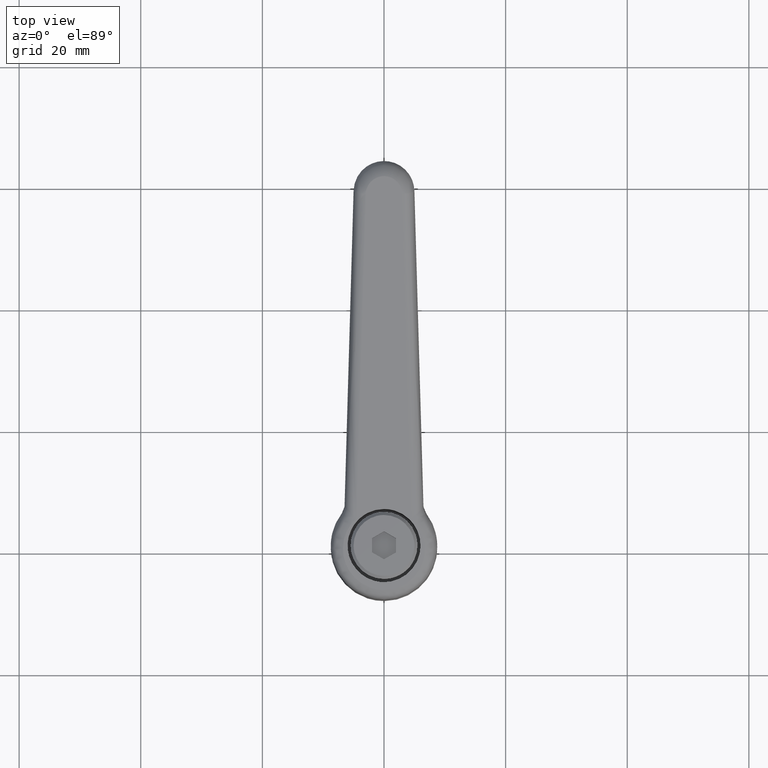
[diagram: clean part render]
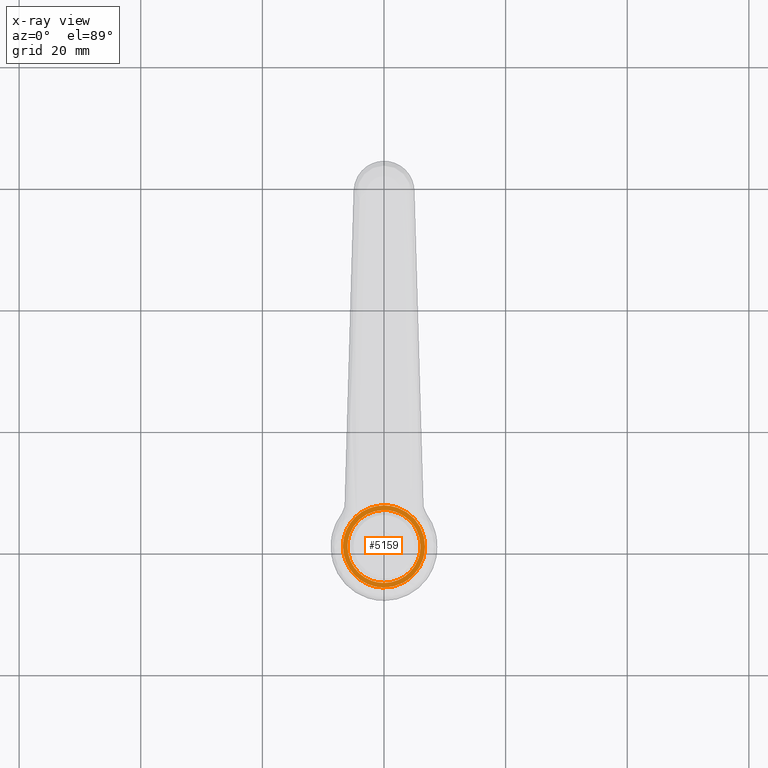
[diagram: x-ray — body ghosted, one internal face saturated and labeled with its STEP entity id]
A machine part, top view, then the same camera in x-ray: the body is ghosted and one INTERNAL B-rep face — a face not visible from any outside direction — is saturated and labeled: STEP entity #5159.
In plain terms, the highlighted face is a freeform B-spline surface patch.
Its self-contained STEP definition (entity closure, byte-faithful):
#1585=CARTESIAN_POINT('',(-6.750000000000000,0.0,20.0));
#1586=VERTEX_POINT('',#1585);
#1587=CARTESIAN_POINT('',(-4.707665774555602,-4.837393883639553,20.0));
#1588=VERTEX_POINT('',#1587);
#1589=CARTESIAN_POINT('',(-6.750000000000000,0.0,20.0));
#1590=CARTESIAN_POINT('',(-6.750047852459818,-0.421344382200241,19.999999999999979));
#1591=CARTESIAN_POINT('',(-6.678750180061511,-1.179743160758535,20.000000000000082));
#1592=CARTESIAN_POINT('',(-6.408624211550302,-2.186355254477525,19.999999999999890));
#1593=CARTESIAN_POINT('',(-6.014554966165452,-3.119779151055231,20.000000000000050));
#1594=CARTESIAN_POINT('',(-5.469862901057756,-4.009576945231448,20.000000000000039));
#1595=CARTESIAN_POINT('',(-4.969372797715725,-4.582732008596127,19.999999999999972));
#1596=CARTESIAN_POINT('',(-4.707665774555602,-4.837393883639553,20.0));
#1597=B_SPLINE_CURVE_WITH_KNOTS('',3,(#1589,#1590,#1591,#1592,#1593,#1594,#1595,#1596),.UNSPECIFIED.,.F.,.U.,(4,1,1,1,1,4),(0.000000021332869,1.264032321652425,2.275263053558142,3.117943944847564,4.297715579759432,5.393206977055107),.UNSPECIFIED.);
#1598=EDGE_CURVE('',#1586,#1588,#1597,.T.);
#1663=CARTESIAN_POINT('',(4.560234118807609,-4.976622161635863,20.000000000000959));
#1664=VERTEX_POINT('',#1663);
#1670=CARTESIAN_POINT('',(6.750000000000000,0.0,20.0));
#1671=VERTEX_POINT('',#1670);
#1672=CARTESIAN_POINT('',(4.560234118807609,-4.976622161635863,20.000000000000959));
#1673=CARTESIAN_POINT('',(4.925599445744350,-4.641939367150545,20.000000000000881));
#1674=CARTESIAN_POINT('',(5.446890379440823,-4.046081094355267,20.000000000000789));
#1675=CARTESIAN_POINT('',(6.096963784251284,-2.971509090422000,20.000000000000529));
#1676=CARTESIAN_POINT('',(6.602284788865497,-1.690360373136041,20.000000000000529));
#1677=CARTESIAN_POINT('',(6.750218731604470,-0.612079373668081,19.999999999999950));
#1678=CARTESIAN_POINT('',(6.750000000000000,0.0,20.0));
#1679=B_SPLINE_CURVE_WITH_KNOTS('',3,(#1672,#1673,#1674,#1675,#1676,#1677,#1678),.UNSPECIFIED.,.F.,.U.,(4,1,1,1,4),(0.000000021068987,1.486439119148687,2.360823021710730,3.759807988980699,5.596001072094870),.UNSPECIFIED.);
#1680=EDGE_CURVE('',#1664,#1671,#1679,.T.);
#1682=CARTESIAN_POINT('',(-0.000000998770336,6.749999999999925,20.0));
#1683=VERTEX_POINT('',#1682);
#1684=CARTESIAN_POINT('',(6.750000000000000,0.0,20.0));
#1685=CARTESIAN_POINT('',(6.750138798138079,0.552245415017492,19.999999999999989));
#1686=CARTESIAN_POINT('',(6.617104526615731,1.629034899699594,20.000000000000028));
#1687=CARTESIAN_POINT('',(6.036317173709437,3.162953865945357,20.000000000000039));
#1688=CARTESIAN_POINT('',(5.107715216543037,4.516453490831710,19.999999999999758));
#1689=CARTESIAN_POINT('',(3.919750659285771,5.566868829422893,20.000000000000309));
#1690=CARTESIAN_POINT('',(2.723917989578697,6.215360291891154,19.999999999999730));
#1691=CARTESIAN_POINT('',(1.435739623917982,6.640939025971506,20.000000000000501));
#1692=CARTESIAN_POINT('',(0.552240922458100,6.750136130865924,19.999999999999400));
#1693=CARTESIAN_POINT('',(-0.000000998770336,6.749999999999925,20.0));
#1694=B_SPLINE_CURVE_WITH_KNOTS('',3,(#1684,#1685,#1686,#1687,#1688,#1689,#1690,#1691,#1692,#1693),.UNSPECIFIED.,.F.,.U.,(4,1,1,1,1,1,1,4),(0.000000063344105,1.656709023213059,3.230585617361703,4.887303374934568,6.543998433416576,7.952207855107704,8.946247108303380,10.602942297336080),.UNSPECIFIED.);
#1695=EDGE_CURVE('',#1671,#1683,#1694,.T.);
#1697=CARTESIAN_POINT('',(-0.000000998770336,6.749999999999925,20.0));
#1698=CARTESIAN_POINT('',(-0.524631747445214,6.750110307263759,20.000000000000011));
#1699=CARTESIAN_POINT('',(-1.325311384082799,6.656164600320455,19.999999999999961));
#1700=CARTESIAN_POINT('',(-2.357723671330400,6.342917325021261,20.000000000000028));
#1701=CARTESIAN_POINT('',(-3.369427482873381,5.894627709943009,19.999999999999940));
#1702=CARTESIAN_POINT('',(-4.378754531556544,5.202125329216883,20.000000000000121));
#1703=CARTESIAN_POINT('',(-5.276839458970125,4.258664903834936,19.999999999999769));
#1704=CARTESIAN_POINT('',(-5.960187740921620,3.249479722978194,20.000000000000359));
#1705=CARTESIAN_POINT('',(-6.570527255918871,1.849817054373054,19.999999999999591));
#1706=CARTESIAN_POINT('',(-6.750311248677847,0.690323562978389,20.000000000000220));
#1707=CARTESIAN_POINT('',(-6.750000000000000,0.0,20.0));
#1708=B_SPLINE_CURVE_WITH_KNOTS('',3,(#1697,#1698,#1699,#1700,#1701,#1702,#1703,#1704,#1705,#1706,#1707),.UNSPECIFIED.,.F.,.U.,(4,1,1,1,1,1,1,1,4),(0.000000063689653,1.573864517690627,2.402228265621648,3.230585274430066,4.887302855312617,6.046968030854600,7.123840372897853,8.532062631622923,10.602941171482099),.UNSPECIFIED.);
#1709=EDGE_CURVE('',#1683,#1586,#1708,.T.);
#1728=CARTESIAN_POINT('',(0.000000998770202,-6.749999999999926,20.0));
#1729=VERTEX_POINT('',#1728);
#1730=CARTESIAN_POINT('',(-4.707665774555602,-4.837393883639553,20.0));
#1731=CARTESIAN_POINT('',(-4.435443302443039,-5.102343833887966,20.0));
#1732=CARTESIAN_POINT('',(-3.782983679431142,-5.637977608221552,20.000000000000028));
#1733=CARTESIAN_POINT('',(-2.586455961763407,-6.292488231079536,19.999999999999929));
#1734=CARTESIAN_POINT('',(-1.275293759613489,-6.674294105283130,20.000000000000099));
#1735=CARTESIAN_POINT('',(-0.379871221355099,-6.750009869499355,19.999999999999918));
#1736=CARTESIAN_POINT('',(0.000000998770202,-6.749999999999926,20.0));
#1737=B_SPLINE_CURVE_WITH_KNOTS('',3,(#1730,#1731,#1732,#1733,#1734,#1735,#1736),.UNSPECIFIED.,.F.,.U.,(4,1,1,1,4),(0.000000021400204,1.139629042592182,2.523478063841860,4.070106598584609,5.209735619777325),.UNSPECIFIED.);
#1738=EDGE_CURVE('',#1588,#1729,#1737,.T.);
#1740=CARTESIAN_POINT('',(0.000000998770202,-6.749999999999926,20.0));
#1741=CARTESIAN_POINT('',(0.521562535789347,-6.750113171596769,20.000000000000131));
#1742=CARTESIAN_POINT('',(1.460312270824603,-6.640634859805171,20.000000000000259));
#1743=CARTESIAN_POINT('',(2.626980457478653,-6.248132938084438,20.000000000000611));
#1744=CARTESIAN_POINT('',(3.646270507660660,-5.716166046534425,20.000000000000650));
#1745=CARTESIAN_POINT('',(4.233423351914636,-5.276176257696398,20.000000000000959));
#1746=CARTESIAN_POINT('',(4.560234118807609,-4.976622161635863,20.000000000000959));
#1747=B_SPLINE_CURVE_WITH_KNOTS('',3,(#1740,#1741,#1742,#1743,#1744,#1745,#1746),.UNSPECIFIED.,.F.,.U.,(4,1,1,1,4),(0.000000020607398,1.564669063013970,2.816403399846659,3.676971222119892,5.006940474732756),.UNSPECIFIED.);
#1748=EDGE_CURVE('',#1729,#1664,#1747,.T.);
#1802=CARTESIAN_POINT('',(0.000002161998299,-5.999999999999610,20.0));
#1803=VERTEX_POINT('',#1802);
#1804=CARTESIAN_POINT('',(4.299906206182567,-4.184592345931867,20.0));
#1805=VERTEX_POINT('',#1804);
#1806=CARTESIAN_POINT('',(0.000002161998299,-5.999999999999610,20.0));
#1807=CARTESIAN_POINT('',(0.349558937109292,-6.000023896291761,20.0));
#1808=CARTESIAN_POINT('',(1.123580664292646,-5.932193404178218,19.999999999999989));
#1809=CARTESIAN_POINT('',(2.329875082779548,-5.584265770356230,20.0));
#1810=CARTESIAN_POINT('',(3.429768763850591,-4.975290410037954,19.999999999999989));
#1811=CARTESIAN_POINT('',(4.056122549326317,-4.435108542765911,20.0));
#1812=CARTESIAN_POINT('',(4.299906206182567,-4.184592345931867,20.0));
#1813=B_SPLINE_CURVE_WITH_KNOTS('',3,(#1806,#1807,#1808,#1809,#1810,#1811,#1812),.UNSPECIFIED.,.F.,.U.,(4,1,1,1,4),(0.000000022588662,1.048678111560434,2.322086499918414,3.745281790245476,4.793959879218744),.UNSPECIFIED.);
#1814=EDGE_CURVE('',#1803,#1805,#1813,.T.);
#1816=CARTESIAN_POINT('',(-6.0,0.0,20.0));
#1817=VERTEX_POINT('',#1816);
#1818=CARTESIAN_POINT('',(-6.0,0.0,20.0));
#1819=CARTESIAN_POINT('',(-6.000085575478749,-0.441789565460154,20.000000000000011));
#1820=CARTESIAN_POINT('',(-5.923727845956352,-1.128968186143672,19.999999999999989));
#1821=CARTESIAN_POINT('',(-5.608731079762666,-2.215381303581054,20.000000000000021));
#1822=CARTESIAN_POINT('',(-5.164655734376877,-3.125224961256195,19.999999999999989));
#1823=CARTESIAN_POINT('',(-4.499134793451297,-4.011079732109551,20.000000000000011));
#1824=CARTESIAN_POINT('',(-3.714137504842598,-4.758518925927571,19.999999999999950));
#1825=CARTESIAN_POINT('',(-2.862677212287104,-5.305031113724250,20.000000000000181));
#1826=CARTESIAN_POINT('',(-1.913415139927537,-5.711937167364414,19.999999999999531));
#1827=CARTESIAN_POINT('',(-1.006284388414288,-5.945065717906108,20.000000000001201));
#1828=CARTESIAN_POINT('',(-0.319064216925106,-6.000020625553515,19.999999999998838));
#1829=CARTESIAN_POINT('',(0.000002161998299,-5.999999999999610,20.0));
#1830=B_SPLINE_CURVE_WITH_KNOTS('',3,(#1818,#1819,#1820,#1821,#1822,#1823,#1824,#1825,#1826,#1827,#1828,#1829),.UNSPECIFIED.,.F.,.U.,(4,1,1,1,1,1,1,1,1,4),(0.000000081565817,1.325351264936403,2.061682888816529,3.387057278031014,4.344266290489123,5.375102802319736,6.626838261267425,7.363159851675317,8.467634578141910,9.424838315799144),.UNSPECIFIED.);
#1831=EDGE_CURVE('',#1817,#1803,#1830,.T.);
#1833=CARTESIAN_POINT('',(-0.000002161998240,5.999999999999610,20.0));
#1834=VERTEX_POINT('',#1833);
#1835=CARTESIAN_POINT('',(-0.000002161998240,5.999999999999610,20.0));
#1836=CARTESIAN_POINT('',(-0.343605303294586,6.000014059929935,20.000000000000011));
#1837=CARTESIAN_POINT('',(-1.104462876515476,5.934505283865646,19.999999999999989));
#1838=CARTESIAN_POINT('',(-2.291617603842110,5.598186538426071,19.999999999999901));
#1839=CARTESIAN_POINT('',(-3.442858999708342,4.973740972322875,20.000000000000309));
#1840=CARTESIAN_POINT('',(-4.297785420202764,4.226958194676615,19.999999999999680));
#1841=CARTESIAN_POINT('',(-5.015425001586107,3.352591425963456,19.999999999999901));
#1842=CARTESIAN_POINT('',(-5.533474468527019,2.424878510248614,20.000000000000210));
#1843=CARTESIAN_POINT('',(-5.912840974068945,1.227149184552120,19.999999999999549));
#1844=CARTESIAN_POINT('',(-6.000082443865584,0.441790006197422,20.000000000000220));
#1845=CARTESIAN_POINT('',(-6.0,0.0,20.0));
#1846=B_SPLINE_CURVE_WITH_KNOTS('',3,(#1835,#1836,#1837,#1838,#1839,#1840,#1841,#1842,#1843,#1844,#1845),.UNSPECIFIED.,.F.,.U.,(4,1,1,1,1,1,1,1,4),(0.000000082313965,1.030820064089765,2.282577233215775,3.681577489015733,4.933282301401247,5.669621485280977,7.068626936973157,8.099475136325003,9.424835878707944),.UNSPECIFIED.);
#1847=EDGE_CURVE('',#1834,#1817,#1846,.T.);
#1849=CARTESIAN_POINT('',(4.423663631031152,4.053540874122107,20.0));
#1850=VERTEX_POINT('',#1849);
#1851=CARTESIAN_POINT('',(4.423663631031152,4.053540874122107,20.0));
#1852=CARTESIAN_POINT('',(4.091190159307550,4.416540927662754,20.000000000000021));
#1853=CARTESIAN_POINT('',(3.356099045433392,5.043036231203819,20.0));
#1854=CARTESIAN_POINT('',(2.214470856088769,5.617680395427002,19.999999999999950));
#1855=CARTESIAN_POINT('',(1.088083260328818,5.931787324659767,20.0));
#1856=CARTESIAN_POINT('',(0.388609802005732,6.000049892262128,20.000000000000028));
#1857=CARTESIAN_POINT('',(-0.000002161998240,5.999999999999610,20.0));
#1858=B_SPLINE_CURVE_WITH_KNOTS('',3,(#1851,#1852,#1853,#1854,#1855,#1856,#1857),.UNSPECIFIED.,.F.,.U.,(4,1,1,1,4),(0.000000022774467,1.476726822743657,2.875720017741523,3.808391670661177,4.974225092483603),.UNSPECIFIED.);
#1859=EDGE_CURVE('',#1850,#1834,#1858,.T.);
#1924=CARTESIAN_POINT('',(6.0,0.0,20.0));
#1925=VERTEX_POINT('',#1924);
#1926=CARTESIAN_POINT('',(4.299906206182567,-4.184592345931867,20.0));
#1927=CARTESIAN_POINT('',(4.535422456315244,-3.942620413793489,20.0));
#1928=CARTESIAN_POINT('',(4.980798714681193,-3.400060383561765,19.999999999999961));
#1929=CARTESIAN_POINT('',(5.562820210892705,-2.365901296558825,20.000000000000071));
#1930=CARTESIAN_POINT('',(5.923514405846428,-1.205964202134617,20.000000000000021));
#1931=CARTESIAN_POINT('',(6.000013763815346,-0.361780598139453,19.999999999999972));
#1932=CARTESIAN_POINT('',(6.0,0.0,20.0));
#1933=B_SPLINE_CURVE_WITH_KNOTS('',3,(#1926,#1927,#1928,#1929,#1930,#1931,#1932),.UNSPECIFIED.,.F.,.U.,(4,1,1,1,4),(0.000000022302426,1.013001673855119,2.098376978837318,3.545514782001144,4.630875533388565),.UNSPECIFIED.);
#1934=EDGE_CURVE('',#1805,#1925,#1933,.T.);
#1966=CARTESIAN_POINT('',(6.0,0.0,20.0));
#1967=CARTESIAN_POINT('',(6.000323050920699,0.602739587036546,19.999999999999989));
#1968=CARTESIAN_POINT('',(5.866076138412410,1.483364568008200,19.999999999999961));
#1969=CARTESIAN_POINT('',(5.327109792483512,2.869424200321313,20.000000000000082));
#1970=CARTESIAN_POINT('',(4.831087055642480,3.609366593555097,19.999999999999901));
#1971=CARTESIAN_POINT('',(4.423663631031152,4.053540874122107,20.0));
#1972=B_SPLINE_CURVE_WITH_KNOTS('',3,(#1966,#1967,#1968,#1969,#1970,#1971),.UNSPECIFIED.,.F.,.U.,(4,1,1,4),(0.000000021233145,1.808071853357463,2.642542459247556,4.450614291333776),.UNSPECIFIED.);
#1973=EDGE_CURVE('',#1925,#1850,#1972,.T.);
#5138=CARTESIAN_POINT('',(-7.424324973834381,7.424324973834299,20.0));
#5139=CARTESIAN_POINT('',(7.424325335932597,7.424324973834299,20.0));
#5140=CARTESIAN_POINT('',(-7.424324973834381,-7.424325335932516,20.0));
#5141=CARTESIAN_POINT('',(7.424325335932597,-7.424325335932516,20.0));
#5142=B_SPLINE_SURFACE_WITH_KNOTS('',1,1,((#5138,#5140),(#5139,#5141)),.UNSPECIFIED.,.F.,.F.,.U.,(2,2),(2,2),(0.0,14.848650309766979),(0.0,14.848650309766811),.UNSPECIFIED.);
#5143=ORIENTED_EDGE('',*,*,#1709,.F.);
#5144=ORIENTED_EDGE('',*,*,#1695,.F.);
#5145=ORIENTED_EDGE('',*,*,#1680,.F.);
#5146=ORIENTED_EDGE('',*,*,#1748,.F.);
#5147=ORIENTED_EDGE('',*,*,#1738,.F.);
#5148=ORIENTED_EDGE('',*,*,#1598,.F.);
#5149=EDGE_LOOP('',(#5143,#5144,#5145,#5146,#5147,#5148));
#5150=FACE_OUTER_BOUND('',#5149,.T.);
#5151=ORIENTED_EDGE('',*,*,#1831,.T.);
#5152=ORIENTED_EDGE('',*,*,#1814,.T.);
#5153=ORIENTED_EDGE('',*,*,#1934,.T.);
#5154=ORIENTED_EDGE('',*,*,#1973,.T.);
#5155=ORIENTED_EDGE('',*,*,#1859,.T.);
#5156=ORIENTED_EDGE('',*,*,#1847,.T.);
#5157=EDGE_LOOP('',(#5151,#5152,#5153,#5154,#5155,#5156));
#5158=FACE_BOUND('',#5157,.T.);
#5159=ADVANCED_FACE('',(#5150,#5158),#5142,.T.);